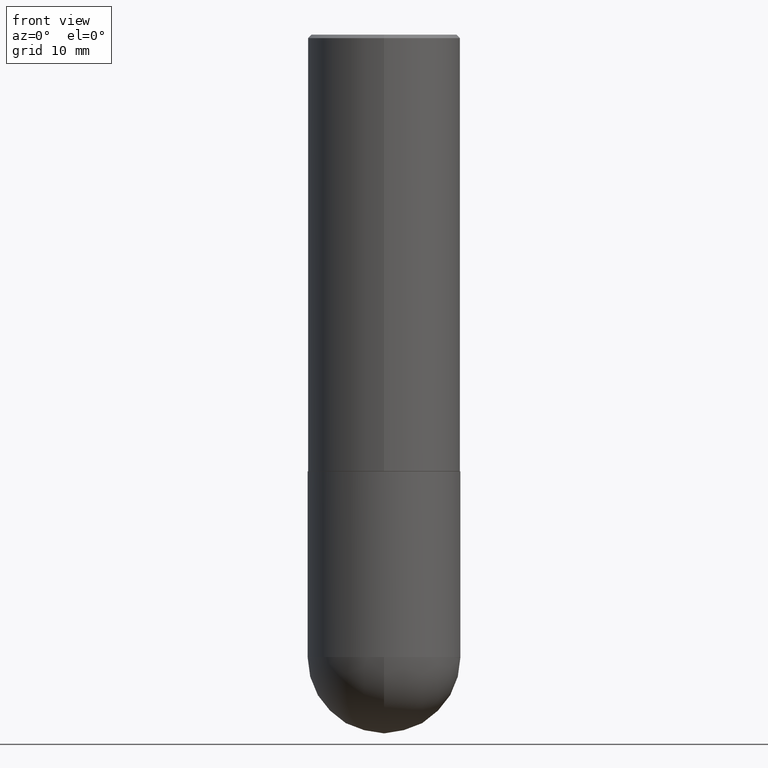
[diagram: clean part render]
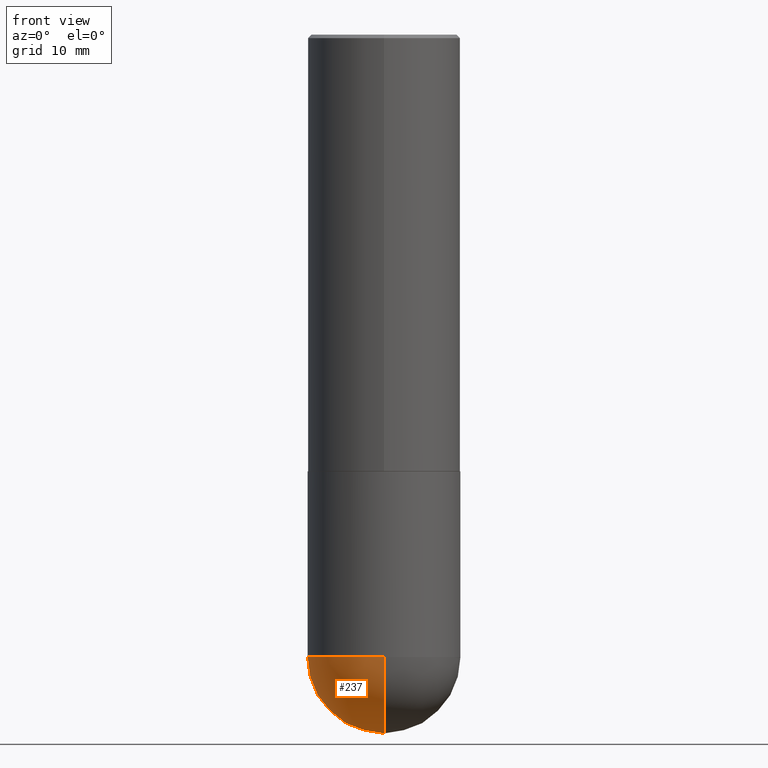
[diagram: same view with one face highlighted and labeled with its STEP entity id]
A machine part, front view. The second image highlights one B-rep face of the part: STEP entity #237.
In plain terms, the highlighted spherical surface has radius 11.1125 mm.
Its self-contained STEP definition (entity closure, byte-faithful):
#7 = DIRECTION ( 'NONE',  ( -1.000000000000000000, 6.982962677686265922E-15, -4.883557194083112340E-29 ) ) ;
#21 = ORIENTED_EDGE ( 'NONE', *, *, #152, .F. ) ;
#39 = AXIS2_PLACEMENT_3D ( 'NONE', #81, #390, #132 ) ;
#55 = CARTESIAN_POINT ( 'NONE',  ( 8.711982622034549126E-29, -1.243840226962870597E-14, -3.562500000000000000 ) ) ;
#69 = CARTESIAN_POINT ( 'NONE',  ( 8.711982622034549126E-29, -1.243840226962870597E-14, -3.562500000000000000 ) ) ;
#72 = DIRECTION ( 'NONE',  ( 6.982962677686265922E-15, 1.000000000000000000, 0.000000000000000000 ) ) ;
#81 = CARTESIAN_POINT ( 'NONE',  ( 8.380862844120662879E-29, -1.291258463776875784E-14, -3.562500000000000000 ) ) ;
#99 = DIRECTION ( 'NONE',  ( 1.000000000000000000, -6.982962677686265133E-15, 0.000000000000000000 ) ) ;
#106 = SPHERICAL_SURFACE ( 'NONE', #184, 0.4375000000000001665 ) ;
#110 = CARTESIAN_POINT ( 'NONE',  ( 9.469462209402459055E-29, -1.441331857478128510E-14, -4.000000000000000000 ) ) ;
#132 = DIRECTION ( 'NONE',  ( -7.105427357601001070E-15, -1.000000000000000000, 0.000000000000000000 ) ) ;
#134 = CARTESIAN_POINT ( 'NONE',  ( 3.055046171487827277E-15, 0.4374999999999873435, -3.562500000000001776 ) ) ;
#137 = DIRECTION ( 'NONE',  ( 1.000000000000000000, -6.982962677686265922E-15, 4.883557194083112340E-29 ) ) ;
#152 = EDGE_CURVE ( 'NONE', #397, #293, #402, .T. ) ;
#153 = ORIENTED_EDGE ( 'NONE', *, *, #335, .F. ) ;
#182 = ORIENTED_EDGE ( 'NONE', *, *, #187, .F. ) ;
#184 = AXIS2_PLACEMENT_3D ( 'NONE', #292, #7, #261 ) ;
#187 = EDGE_CURVE ( 'NONE', #198, #397, #338, .T. ) ;
#188 = AXIS2_PLACEMENT_3D ( 'NONE', #69, #225, #254 ) ;
#198 = VERTEX_POINT ( 'NONE', #134 ) ;
#212 = CIRCLE ( 'NONE', #39, 0.4375000000000001665 ) ;
#219 = FACE_OUTER_BOUND ( 'NONE', #367, .T. ) ;
#223 = EDGE_CURVE ( 'NONE', #272, #293, #212, .T. ) ;
#225 = DIRECTION ( 'NONE',  ( -2.445468806185136597E-29, 3.491481338843145583E-15, 1.000000000000000000 ) ) ;
#237 = ADVANCED_FACE ( 'NONE', ( #219 ), #106, .T. ) ;
#245 = AXIS2_PLACEMENT_3D ( 'NONE', #409, #137, #72 ) ;
#254 = DIRECTION ( 'NONE',  ( 1.000000000000000000, -6.982962677686265133E-15, 0.000000000000000000 ) ) ;
#261 = DIRECTION ( 'NONE',  ( 6.982962677686265922E-15, 1.000000000000000000, -3.746534391310987979E-15 ) ) ;
#272 = VERTEX_POINT ( 'NONE', #110 ) ;
#274 = AXIS2_PLACEMENT_3D ( 'NONE', #55, #377, #99 ) ;
#292 = CARTESIAN_POINT ( 'NONE',  ( 8.380862844120662879E-29, -1.291258463776875784E-14, -3.562500000000000000 ) ) ;
#293 = VERTEX_POINT ( 'NONE', #301 ) ;
#301 = CARTESIAN_POINT ( 'NONE',  ( -3.108624468950352327E-15, -0.4375000000000127676, -3.562499999999998224 ) ) ;
#303 = CIRCLE ( 'NONE', #245, 0.4375000000000001665 ) ;
#335 = EDGE_CURVE ( 'NONE', #272, #198, #303, .T. ) ;
#338 = CIRCLE ( 'NONE', #188, 0.4374999999999998890 ) ;
#367 = EDGE_LOOP ( 'NONE', ( #153, #368, #21, #182 ) ) ;
#368 = ORIENTED_EDGE ( 'NONE', *, *, #223, .T. ) ;
#377 = DIRECTION ( 'NONE',  ( -2.445468806185136597E-29, 3.491481338843145583E-15, 1.000000000000000000 ) ) ;
#390 = DIRECTION ( 'NONE',  ( -1.000000000000000000, 7.105427357601001070E-15, -4.926315508542082329E-29 ) ) ;
#397 = VERTEX_POINT ( 'NONE', #412 ) ;
#402 = CIRCLE ( 'NONE', #274, 0.4374999999999998890 ) ;
#409 = CARTESIAN_POINT ( 'NONE',  ( 8.380862844120662879E-29, -1.291258463776875784E-14, -3.562500000000000000 ) ) ;
#412 = CARTESIAN_POINT ( 'NONE',  ( -0.4374999999999998890, -7.474928339417851874E-15, -3.562500000000000000 ) ) ;